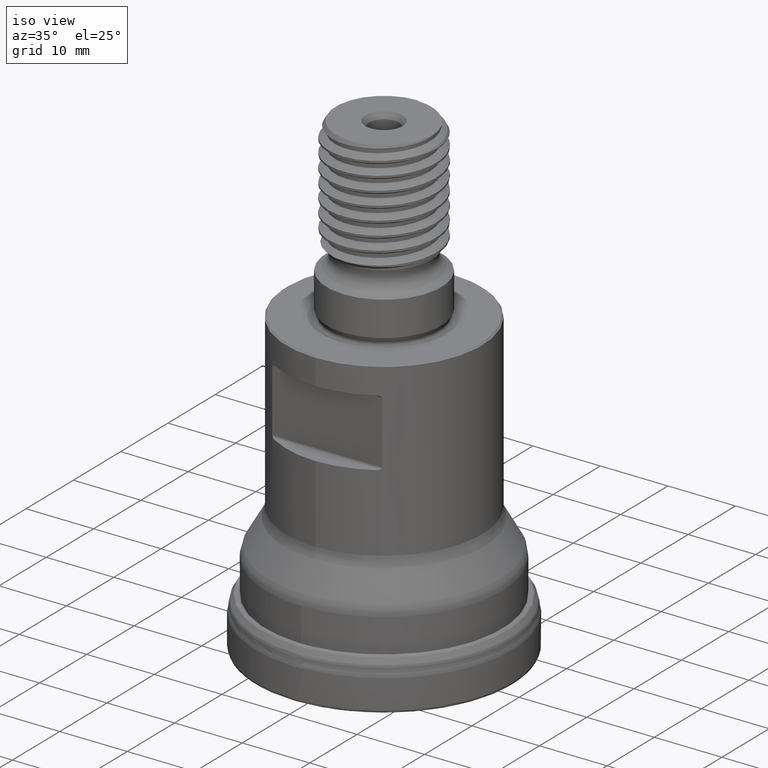
[diagram: clean part render]
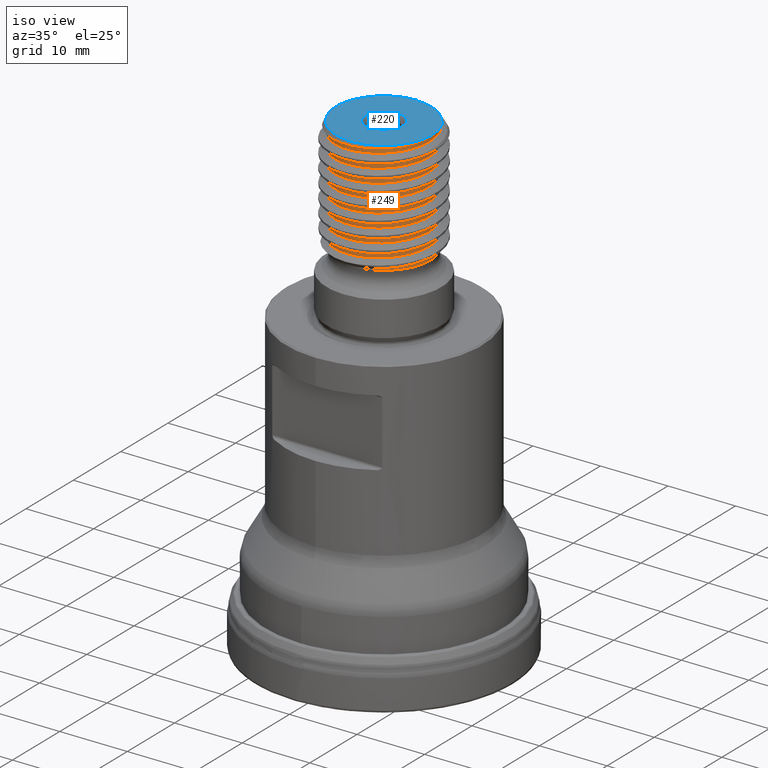
[diagram: same view with the hole feature highlighted: cylindrical wall and planar end face, labeled with their STEP entity ids]
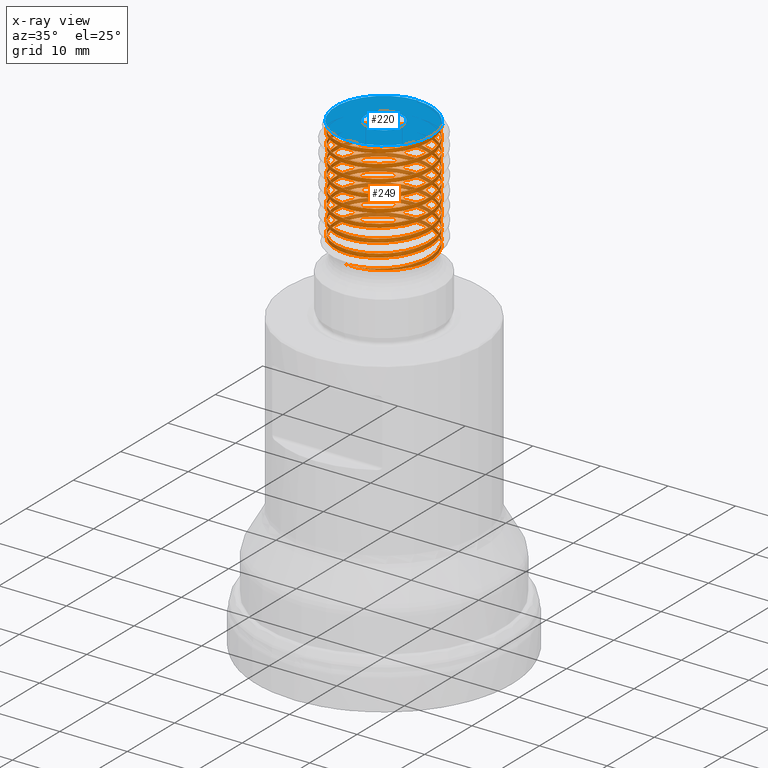
[diagram: x-ray of the same camera — body ghosted, the hole faces saturated]
A machine part, iso view. The highlighted faces form one hole feature of diameter 14 mm: the cylindrical wall (entity #249, orange) and its adjacent planar end face (entity #220, blue) — they share a circular edge in the B-rep.
The next image is the same camera in x-ray (body ghosted, the hole faces saturated) — the bore reads through the body.
Wall:
#170=FACE_OUTER_BOUND('',#500,.T.);
#249=ADVANCED_FACE('',(#170),#283,.T.);
#283=CYLINDRICAL_SURFACE('',#1099,7.);
#298=LINE('',#2201,#319);
#319=VECTOR('',#1295,1.);
#500=EDGE_LOOP('',(#672,#673,#674,#675,#676));
#672=ORIENTED_EDGE('',*,*,#843,.T.);
#673=ORIENTED_EDGE('',*,*,#881,.T.);
#674=ORIENTED_EDGE('',*,*,#854,.T.);
#675=ORIENTED_EDGE('',*,*,#882,.T.);
#676=ORIENTED_EDGE('',*,*,#879,.T.);
#763=VERTEX_POINT('',#1801);
#764=VERTEX_POINT('',#1802);
#773=VERTEX_POINT('',#2092);
#774=VERTEX_POINT('',#2093);
#789=VERTEX_POINT('',#2202);
#843=EDGE_CURVE('',#763,#764,#924,.T.);
#854=EDGE_CURVE('',#773,#774,#929,.T.);
#879=EDGE_CURVE('',#789,#763,#298,.T.);
#881=EDGE_CURVE('',#764,#773,#1001,.T.);
#882=EDGE_CURVE('',#774,#789,#1002,.T.);
#924=CIRCLE('',#1053,7.);
#929=CIRCLE('',#1061,7.);
#1001=B_SPLINE_CURVE_WITH_KNOTS('',3,(#2206,#2207,#2208,#2209,#2210,#2211,
#2212,#2213,#2214,#2215,#2216,#2217,#2218,#2219,#2220,#2221,#2222,#2223,
#2224,#2225,#2226,#2227,#2228,#2229,#2230,#2231,#2232,#2233,#2234,#2235,
#2236,#2237,#2238,#2239,#2240,#2241,#2242,#2243,#2244,#2245,#2246,#2247,
#2248,#2249,#2250,#2251,#2252,#2253,#2254,#2255,#2256,#2257,#2258,#2259,
#2260,#2261,#2262,#2263,#2264,#2265,#2266,#2267,#2268,#2269,#2270,#2271,
#2272,#2273,#2274,#2275,#2276,#2277,#2278,#2279,#2280,#2281,#2282,#2283,
#2284,#2285,#2286,#2287,#2288,#2289,#2290,#2291,#2292,#2293,#2294,#2295,
#2296,#2297,#2298,#2299,#2300,#2301,#2302,#2303,#2304,#2305,#2306,#2307,
#2308,#2309,#2310,#2311,#2312,#2313,#2314,#2315,#2316,#2317,#2318,#2319,
#2320,#2321,#2322,#2323,#2324,#2325,#2326,#2327,#2328,#2329,#2330,#2331,
#2332,#2333,#2334,#2335),.UNSPECIFIED.,.F.,.F.,(4,2,2,2,2,2,2,2,2,2,2,2,
2,2,2,2,2,2,2,2,2,2,2,2,2,2,2,2,2,2,2,2,2,2,2,2,2,2,2,2,2,2,2,2,2,2,2,2,
2,2,2,2,2,2,2,2,2,2,2,2,2,2,2,2,4),(0.,0.015625,0.03125,0.046875,0.0625,
0.078125,0.09375,0.109375,0.125,0.140625,0.15625,0.171875,0.1875,0.203125,
0.21875,0.234375,0.25,0.265625,0.28125,0.296875,0.3125,0.328125,0.34375,
0.359375,0.375,0.390625,0.40625,0.421875,0.4375,0.453125,0.46875,0.484375,
0.5,0.515625,0.53125,0.546875,0.5625,0.578125,0.59375,0.609375,0.625,0.640625,
0.65625,0.671875,0.6875,0.703125,0.71875,0.734375,0.75,0.765625,0.78125,
0.796875,0.8125,0.828125,0.84375,0.859375,0.875,0.890625,0.90625,0.921875,
0.9375,0.953125,0.96875,0.984375,1.),.UNSPECIFIED.);
#1002=B_SPLINE_CURVE_WITH_KNOTS('',3,(#2336,#2337,#2338,#2339,#2340,#2341,
#2342,#2343,#2344,#2345,#2346,#2347,#2348,#2349,#2350,#2351,#2352,#2353,
#2354,#2355,#2356,#2357,#2358,#2359,#2360,#2361,#2362,#2363,#2364,#2365,
#2366,#2367,#2368,#2369,#2370,#2371,#2372,#2373,#2374,#2375,#2376,#2377,
#2378,#2379,#2380,#2381,#2382,#2383,#2384,#2385,#2386,#2387,#2388,#2389,
#2390,#2391,#2392,#2393,#2394,#2395,#2396,#2397,#2398,#2399,#2400,#2401,
#2402,#2403,#2404,#2405,#2406,#2407,#2408,#2409,#2410,#2411,#2412,#2413,
#2414,#2415,#2416,#2417,#2418,#2419,#2420,#2421,#2422,#2423,#2424,#2425,
#2426,#2427,#2428,#2429,#2430,#2431,#2432,#2433,#2434,#2435,#2436,#2437,
#2438,#2439,#2440,#2441,#2442,#2443,#2444,#2445,#2446,#2447,#2448,#2449,
#2450,#2451,#2452,#2453,#2454,#2455,#2456,#2457,#2458,#2459,#2460,#2461,
#2462,#2463,#2464,#2465),.UNSPECIFIED.,.F.,.F.,(4,2,2,2,2,2,2,2,2,2,2,2,
2,2,2,2,2,2,2,2,2,2,2,2,2,2,2,2,2,2,2,2,2,2,2,2,2,2,2,2,2,2,2,2,2,2,2,2,
2,2,2,2,2,2,2,2,2,2,2,2,2,2,2,2,4),(0.,0.015625,0.03125,0.046875,0.0625,
0.078125,0.09375,0.109375,0.125,0.140625,0.15625,0.171875,0.1875,0.203125,
0.21875,0.234375,0.25,0.265625,0.28125,0.296875,0.3125,0.328125,0.34375,
0.359375,0.375,0.390625,0.40625,0.421875,0.4375,0.453125,0.46875,0.484375,
0.5,0.515625,0.53125,0.546875,0.5625,0.578125,0.59375,0.609375,0.625,0.640625,
0.65625,0.671875,0.6875,0.703125,0.71875,0.734375,0.75,0.765625,0.78125,
0.796875,0.8125,0.828125,0.84375,0.859375,0.875,0.890625,0.90625,0.921875,
0.9375,0.953125,0.96875,0.984375,1.),.UNSPECIFIED.);
#1053=AXIS2_PLACEMENT_3D('',#1800,#1195,#1196);
#1061=AXIS2_PLACEMENT_3D('',#2091,#1212,#1213);
#1099=AXIS2_PLACEMENT_3D('',#2466,#1298,#1299);
#1195=DIRECTION('',(-1.17145536458252E-15,-1.17145536458252E-15,-1.));
#1196=DIRECTION('',(1.,-1.76085023486833E-30,-1.98254111540207E-15));
#1212=DIRECTION('',(1.17145536458252E-15,1.17145536458252E-15,1.));
#1213=DIRECTION('',(1.,-1.76085023486833E-30,-9.91270557701033E-16));
#1295=DIRECTION('',(1.17145536458252E-15,1.17145536458252E-15,1.));
#1298=DIRECTION('',(-1.17145536458252E-15,-1.17145536458252E-15,-1.));
#1299=DIRECTION('',(1.,-1.76085023486833E-30,-1.98254111540207E-15));
#1800=CARTESIAN_POINT('',(8.25290304348388E-14,8.25290304348388E-14,70.45));
#1801=CARTESIAN_POINT('',(8.25290304348387E-14,7.00000000000008,70.45));
#1802=CARTESIAN_POINT('',(5.35401283944786,4.50938427227366,70.45));
#2091=CARTESIAN_POINT('',(6.28892803353137E-14,6.28892803353137E-14,53.6847431295223));
#2092=CARTESIAN_POINT('',(-0.934828873592552,-6.93729738277787,53.6847431295249));
#2093=CARTESIAN_POINT('',(6.99522109408452,0.258615244871098,53.6847431295228));
#2201=CARTESIAN_POINT('',(8.25290304348387E-14,7.00000000000008,70.45));
#2202=CARTESIAN_POINT('',(8.22045752882812E-14,7.00000000000008,70.173032429261));
#2206=CARTESIAN_POINT('',(5.35401283944786,4.50938427227366,70.45));
#2207=CARTESIAN_POINT('',(6.59182985406166,3.03971839574197,70.3637399565031));
#2208=CARTESIAN_POINT('',(7.18310776025138,1.04060566650342,70.2742170686101));
#2209=CARTESIAN_POINT('',(6.71007346318391,-2.76673297721647,70.1017771202478));
#2210=CARTESIAN_POINT('',(5.64741838099544,-4.55773102854534,70.0127684963518));
#2211=CARTESIAN_POINT('',(2.54132800149736,-6.79763918484753,69.8398856306728));
#2212=CARTESIAN_POINT('',(0.50733566448231,-7.24267297883892,69.7518740259479));
#2213=CARTESIAN_POINT('',(-3.27101434844653,-6.48183357446915,69.5766291890875));
#2214=CARTESIAN_POINT('',(-4.97144275114471,-5.28568611067704,69.489864770749));
#2215=CARTESIAN_POINT('',(-6.96787450795535,-2.02544946367457,69.3148538591715));
#2216=CARTESIAN_POINT('',(-7.26320076300864,0.0255693779078201,69.2293671630908));
#2217=CARTESIAN_POINT('',(-6.21615749688584,3.75687703961237,69.0511733908775));
#2218=CARTESIAN_POINT('',(-4.89665834508435,5.35511387048648,68.9661228771191));
#2219=CARTESIAN_POINT('',(-1.49502756448623,7.10066194771925,68.7901207254955));
#2220=CARTESIAN_POINT('',(0.580296364754777,7.23681638324706,68.704553903868));
#2221=CARTESIAN_POINT('',(4.20017774417421,5.92171952671896,68.527748524665));
#2222=CARTESIAN_POINT('',(5.70687112222425,4.48334215800183,68.4412128938815));
#2223=CARTESIAN_POINT('',(7.19445480774719,0.953181478353687,68.266675034365));
#2224=CARTESIAN_POINT('',(7.16944205701404,-1.12937584197261,68.1787711843122));
#2225=CARTESIAN_POINT('',(5.59318189643599,-4.62522491071439,68.0056230096417));
#2226=CARTESIAN_POINT('',(4.04888381629346,-6.02520234677506,67.9165708843148));
#2227=CARTESIAN_POINT('',(0.403230491227549,-7.24802929411646,67.743758980196));
#2228=CARTESIAN_POINT('',(-1.66954994431885,-7.06191307996421,67.6544212464238));
#2229=CARTESIAN_POINT('',(-5.02853502023424,-5.23181124619594,67.4825773239058));
#2230=CARTESIAN_POINT('',(-6.30893056296727,-3.59660762278265,67.3937077783631));
#2231=CARTESIAN_POINT('',(-7.26052910259677,0.151355181433089,67.2194326734303));
#2232=CARTESIAN_POINT('',(-6.91545744091675,2.19753302384504,67.1313756649198));
#2233=CARTESIAN_POINT('',(-4.83922372147424,5.40690454710847,66.9580635423184));
#2234=CARTESIAN_POINT('',(-3.11233588824858,6.56058017586516,66.871014212604));
#2235=CARTESIAN_POINT('',(0.690998011584477,7.22844164901551,66.6946211510305));
#2236=CARTESIAN_POINT('',(2.71013655482188,6.73169031169701,66.6085256686138));
#2237=CARTESIAN_POINT('',(5.7573933078161,4.41734274168211,66.4327520095467));
#2238=CARTESIAN_POINT('',(6.77641593002273,2.60178592739117,66.3471605019251));
#2239=CARTESIAN_POINT('',(7.15531493554144,-1.22088944702363,66.1702481544423));
#2240=CARTESIAN_POINT('',(6.51259507649208,-3.20435629795625,66.0846683909485));
#2241=CARTESIAN_POINT('',(3.96835112553032,-6.07733356490346,65.9081235447665));
#2242=CARTESIAN_POINT('',(2.07883676271745,-6.95291201598073,65.8220935812967));
#2243=CARTESIAN_POINT('',(-1.74870032339423,-7.04319494029202,65.6469068228754));
#2244=CARTESIAN_POINT('',(-3.67745404805557,-6.26046957530081,65.5597184674029));
#2245=CARTESIAN_POINT('',(-6.3642930484092,-3.494699067559,65.3850178433534));
#2246=CARTESIAN_POINT('',(-7.08947843333174,-1.54688544324759,65.2966065488588));
#2247=CARTESIAN_POINT('',(-6.89178994831313,2.27085674130664,65.1245855478021));
#2248=CARTESIAN_POINT('',(-5.97462191661079,4.12972994134755,65.035712404908));
#2249=CARTESIAN_POINT('',(-3.00232141457673,6.61338359378036,64.8618368171321));
#2250=CARTESIAN_POINT('',(-1.00933444004367,7.1858717496009,64.7728628155461));
#2251=CARTESIAN_POINT('',(2.78370628763769,6.7012303435815,64.6009455205623));
#2252=CARTESIAN_POINT('',(4.57220412615423,5.63917599451545,64.512134995631));
#2253=CARTESIAN_POINT('',(6.81271632572394,2.50843631243757,64.3382319579841));
#2254=CARTESIAN_POINT('',(7.24222513211489,0.469745786580303,64.2502607822695));
#2255=CARTESIAN_POINT('',(6.47205018406627,-3.28375583488992,64.0759062400375));
#2256=CARTESIAN_POINT('',(5.27308907618258,-4.98685191999907,63.9890501830469));
#2257=CARTESIAN_POINT('',(1.99686759690002,-6.97758412903811,63.8134596960411));
#2258=CARTESIAN_POINT('',(-0.0682978357518206,-7.25908869280531,63.7274503670304));
#2259=CARTESIAN_POINT('',(-3.76766532668336,-6.20513748683217,63.5505326137417));
#2260=CARTESIAN_POINT('',(-5.37136866375982,-4.87905051621345,63.4650536350419));
#2261=CARTESIAN_POINT('',(-7.1059384716918,-1.47050117249674,63.289011886698));
#2262=CARTESIAN_POINT('',(-7.23743018352602,0.601302060956955,63.2036085647032));
#2263=CARTESIAN_POINT('',(-5.9017063872833,4.23223599864479,63.0261008739749));
#2264=CARTESIAN_POINT('',(-4.45995962150061,5.72377192431284,62.939851551649));
#2265=CARTESIAN_POINT('',(-0.932416327949172,7.19606869466532,62.7658562120123));
#2266=CARTESIAN_POINT('',(1.14478626554068,7.17034336722686,62.6780967084088));
#2267=CARTESIAN_POINT('',(4.65742128514693,5.57070790567638,62.5039383389861));
#2268=CARTESIAN_POINT('',(6.04242615680563,4.01884882279185,62.4150279522644));
#2269=CARTESIAN_POINT('',(7.24659439671948,0.385913682496214,62.243058908117));
#2270=CARTESIAN_POINT('',(7.0596435803283,-1.68771722382773,62.1536696082779));
#2271=CARTESIAN_POINT('',(5.21048631932278,-5.05349277480682,61.9811204253997));
#2272=CARTESIAN_POINT('',(3.5589454308463,-6.32600486147624,61.8919165836853));
#2273=CARTESIAN_POINT('',(-0.165550446339989,-7.25651590895236,61.718813137205));
#2274=CARTESIAN_POINT('',(-2.21869820785419,-6.90945999869791,61.6304797010656));
#2275=CARTESIAN_POINT('',(-5.42562278325881,-4.81932325383188,61.4568026437681));
#2276=CARTESIAN_POINT('',(-6.5735160454449,-3.08373021007898,61.3696888716249));
#2277=CARTESIAN_POINT('',(-7.22524767544023,0.718541047415756,61.1933423746949));
#2278=CARTESIAN_POINT('',(-6.72126457160762,2.73450397180255,61.1073768856627));
#2279=CARTESIAN_POINT('',(-4.39901568467862,5.77075128725056,60.9317214852214));
#2280=CARTESIAN_POINT('',(-2.59024724670549,6.78503757456654,60.8465997756958));
#2281=CARTESIAN_POINT('',(1.26330289006518,7.15193550693089,60.6683123631861));
#2282=CARTESIAN_POINT('',(3.23207584338739,6.49689125257246,60.5832078870409));
#2283=CARTESIAN_POINT('',(6.08608367657033,3.95164468126186,60.4073398598758));
#2284=CARTESIAN_POINT('',(6.96015424422518,2.06358459392561,60.3213208162441));
#2285=CARTESIAN_POINT('',(7.03705038746075,-1.78383023968956,60.1453745726303));
#2286=CARTESIAN_POINT('',(6.23848032117962,-3.70860555300654,60.0579446165746));
#2287=CARTESIAN_POINT('',(3.47957727501252,-6.36906067271714,59.8844527990376));
#2288=CARTESIAN_POINT('',(1.52746176008199,-7.0950252067429,59.7957128925939));
#2289=CARTESIAN_POINT('',(-2.29947156248231,-6.88367290377489,59.6233149124962));
#2290=CARTESIAN_POINT('',(-4.16158177004599,-5.9484105311303,59.5338922105645));
#2291=CARTESIAN_POINT('',(-6.61732711724459,-2.9855204737232,59.3611450627046));
#2292=CARTESIAN_POINT('',(-7.18926667021446,-0.985241098635494,59.2718344954661));
#2293=CARTESIAN_POINT('',(-6.69176052578364,2.80652745282521,59.0998466826444));
#2294=CARTESIAN_POINT('',(-5.62941565319139,4.5886839272928,59.0114020438572));
#2295=CARTESIAN_POINT('',(-2.47238180466244,6.82888490113623,58.8364228372758));
#2296=CARTESIAN_POINT('',(-0.440459225379978,7.24286109417288,58.7490216318845));
#2297=CARTESIAN_POINT('',(3.30145670140637,6.46168900578207,58.5749612372699));
#2298=CARTESIAN_POINT('',(5.00016328177295,5.26487300968692,58.4884593224677));
#2299=CARTESIAN_POINT('',(6.99116784602862,1.96063581553934,58.3116703937408));
#2300=CARTESIAN_POINT('',(7.25619424700712,-0.103313944764817,58.2258854416368));
#2301=CARTESIAN_POINT('',(6.19420524040628,-3.78085309965949,58.049790797359));
#2302=CARTESIAN_POINT('',(4.86662335418829,-5.38517775976989,57.9642458414476));
#2303=CARTESIAN_POINT('',(1.43924608589091,-7.11426265189149,57.7875657444893));
#2304=CARTESIAN_POINT('',(-0.642585154253901,-7.23005471776389,57.701663645855));
#2305=CARTESIAN_POINT('',(-4.24143917071779,-5.89039902412629,57.5255765976557));
#2306=CARTESIAN_POINT('',(-5.7379593659084,-4.44271629334196,57.4387947901174));
#2307=CARTESIAN_POINT('',(-7.20009932440514,-0.905801008303158,57.2647522258906));
#2308=CARTESIAN_POINT('',(-7.16561528627938,1.17399169033114,57.1767516265969));
#2309=CARTESIAN_POINT('',(-5.55170131765896,4.6800546363725,57.0027117094738));
#2310=CARTESIAN_POINT('',(-3.99607865108831,6.05676130156114,56.9138408999559));
#2311=CARTESIAN_POINT('',(-0.363580336603838,7.2471243530526,56.7421123082595));
#2312=CARTESIAN_POINT('',(1.70228631516821,7.06006937321765,56.6531234480122));
#2313=CARTESIAN_POINT('',(5.08606496162923,5.1840429646698,56.4792470474953));
#2314=CARTESIAN_POINT('',(6.34012391600177,3.52985129435543,56.3905312160375));
#2315=CARTESIAN_POINT('',(7.25418299091368,-0.183985230001435,56.2179899365698));
#2316=CARTESIAN_POINT('',(6.90662075853497,-2.23559056375216,56.1298297942634));
#2317=CARTESIAN_POINT('',(4.79470346751631,-5.4506966646063,55.9551763189991));
#2318=CARTESIAN_POINT('',(3.04742765990638,-6.58690615163973,55.8680056649412));
#2319=CARTESIAN_POINT('',(-0.733458628146194,-7.22053920657378,55.6926500217888));
#2320=CARTESIAN_POINT('',(-2.75391193625728,-6.71463575032088,55.6065139888161));
#2321=CARTESIAN_POINT('',(-5.78940828608567,-4.37642729965323,55.4303789395079));
#2322=CARTESIAN_POINT('',(-6.79635662235476,-2.55236082403487,55.344817082462));
#2323=CARTESIAN_POINT('',(-7.14583538334275,1.2814233447462,55.1675042893522));
#2324=CARTESIAN_POINT('',(-6.48580660908807,3.25415152738313,55.0820816207014));
#2325=CARTESIAN_POINT('',(-3.93118230461309,6.09926185874636,54.906290814266));
#2326=CARTESIAN_POINT('',(-2.04825281416951,6.96814755574039,54.8205327853358));
#2327=CARTESIAN_POINT('',(1.82445246900012,7.03006352301912,54.6436050246447));
#2328=CARTESIAN_POINT('',(3.73343725036054,6.22213168083683,54.5565648549099));
#2329=CARTESIAN_POINT('',(6.37756099305054,3.46124141544232,54.3836559117896));
#2330=CARTESIAN_POINT('',(7.10129864052017,1.51290773113213,54.2950420461714));
#2331=CARTESIAN_POINT('',(6.87445573996873,-2.33649105797206,54.1216626600896));
#2332=CARTESIAN_POINT('',(5.92583968564051,-4.18918001341478,54.0323242787243));
#2333=CARTESIAN_POINT('',(2.96923611403537,-6.62181561686923,53.8604509437015));
#2334=CARTESIAN_POINT('',(0.966882538176202,-7.19356068516641,53.7710710836281));
#2335=CARTESIAN_POINT('',(-0.934828873592552,-6.93729738277787,53.6847431295249));
#2336=CARTESIAN_POINT('',(6.99522109408425,0.258615244871088,53.6847431295229));
#2337=CARTESIAN_POINT('',(6.92572242930802,2.13846778835044,53.7695730139948));
#2338=CARTESIAN_POINT('',(6.06472044324267,3.98089988709795,53.8567405733409));
#2339=CARTESIAN_POINT('',(3.21128253153281,6.50507974343545,54.0279959313825));
#2340=CARTESIAN_POINT('',(1.27792928435417,7.1346224343733,54.1155122785163));
#2341=CARTESIAN_POINT('',(-2.46924920741307,6.81459821915879,54.2843451068829));
#2342=CARTESIAN_POINT('',(-4.27414430919489,5.8569064260152,54.3724557580976));
#2343=CARTESIAN_POINT('',(-6.6410592045318,2.90998197603077,54.5421859610927));
#2344=CARTESIAN_POINT('',(-7.18893277846953,0.941698582057799,54.6300851518052));
#2345=CARTESIAN_POINT('',(-6.68686845150141,-2.80238131329733,54.8000212006104));
#2346=CARTESIAN_POINT('',(-5.63732303515101,-4.55606364861955,54.8876066249393));
#2347=CARTESIAN_POINT('',(-2.594870758108,-6.7678484558708,55.05731835861));
#2348=CARTESIAN_POINT('',(-0.615965414644235,-7.22881397661019,55.143717001805));
#2349=CARTESIAN_POINT('',(3.1350205176248,-6.54269143812733,55.3164743049107));
#2350=CARTESIAN_POINT('',(4.82263773790638,-5.41102664973121,55.4021404650581));
#2351=CARTESIAN_POINT('',(6.88510091819225,-2.26548659265267,55.5733887550785));
#2352=CARTESIAN_POINT('',(7.24588152494474,-0.253721137332952,55.6589083641066));
#2353=CARTESIAN_POINT('',(6.39010405470428,3.42545524844762,55.8316299452848));
#2354=CARTESIAN_POINT('',(5.1808934076301,5.07245853987793,55.9164315322807));
#2355=CARTESIAN_POINT('',(1.92413074250489,6.99065183124957,56.0898701448494));
#2356=CARTESIAN_POINT('',(-0.103048989918367,7.24740860507399,56.1742393622579));
#2357=CARTESIAN_POINT('',(-3.72067873856505,6.22029744526844,56.347192606031));
#2358=CARTESIAN_POINT('',(-5.30614581086593,4.94698089230252,56.4307778175215));
#2359=CARTESIAN_POINT('',(-7.08114796320006,1.57643485061809,56.6061437551133));
#2360=CARTESIAN_POINT('',(-7.2342529445692,-0.451689748096656,56.6897103646169));
#2361=CARTESIAN_POINT('',(-6.03339513018986,-4.01703653176626,56.8628050201377));
#2362=CARTESIAN_POINT('',(-4.67305761549565,-5.54307506004343,56.9471530635474));
#2363=CARTESIAN_POINT('',(-1.25264842077856,-7.14100976983918,57.1204674039748));
#2364=CARTESIAN_POINT('',(0.789319990891595,-7.20784304106902,57.2052465346004));
#2365=CARTESIAN_POINT('',(4.31144007341891,-5.82988094612801,57.3781354753607));
#2366=CARTESIAN_POINT('',(5.76433420277373,-4.39398679567564,57.4637850269804));
#2367=CARTESIAN_POINT('',(7.19013752784086,-0.914653536905725,57.6346280947087));
#2368=CARTESIAN_POINT('',(7.16707131468788,1.11997504539768,57.7208338615026));
#2369=CARTESIAN_POINT('',(5.6136052866242,4.59441955181724,57.892781368583));
#2370=CARTESIAN_POINT('',(4.11238445574228,5.96898941337018,57.9797754621502));
#2371=CARTESIAN_POINT('',(0.565402621516545,7.2264002383163,58.1491587504475));
#2372=CARTESIAN_POINT('',(-1.47510067609843,7.09815628294545,58.2370861336184));
#2373=CARTESIAN_POINT('',(-4.84250962083672,5.39535403785953,58.4066125888615));
#2374=CARTESIAN_POINT('',(-6.15639508953011,3.83142499997223,58.4945744688142));
#2375=CARTESIAN_POINT('',(-7.2483034645543,0.207641312200036,58.6645670184394));
#2376=CARTESIAN_POINT('',(-7.01555404514274,-1.82098578029578,58.7524488724735));
#2377=CARTESIAN_POINT('',(-5.15939731306674,-5.09063916795107,58.9215350932944));
#2378=CARTESIAN_POINT('',(-3.54343615648599,-6.32919989146007,59.0088007805188));
#2379=CARTESIAN_POINT('',(0.145333127595472,-7.25214377568275,59.1802506783397));
#2380=CARTESIAN_POINT('',(2.15521860325042,-6.92080301454596,59.2670325152635));
#2381=CARTESIAN_POINT('',(5.33538864979264,-4.90674123524054,59.4374057973465));
#2382=CARTESIAN_POINT('',(6.49423120583829,-3.22196405520096,59.5239220353625));
#2383=CARTESIAN_POINT('',(7.23389353933397,0.47631459086791,59.6954030025059));
#2384=CARTESIAN_POINT('',(6.81606333070193,2.47528618791959,59.7809770290904));
#2385=CARTESIAN_POINT('',(4.63861566969253,5.5739578137198,59.9540059132551));
#2386=CARTESIAN_POINT('',(2.89949440379947,6.64274408151451,60.0388636398681));
#2387=CARTESIAN_POINT('',(-0.818042227627674,7.2016611725336,60.2112643597703));
#2388=CARTESIAN_POINT('',(-2.79127870830973,6.69454081991805,60.2953806629006));
#2389=CARTESIAN_POINT('',(-5.79244604748853,4.36528148049424,60.4700745925601));
#2390=CARTESIAN_POINT('',(-6.77448705256109,2.5789183335959,60.5538837486503));
#2391=CARTESIAN_POINT('',(-7.1541600892899,-1.16725661852301,60.7272836726705));
#2392=CARTESIAN_POINT('',(-6.54394200740868,-3.11921482001926,60.8113408095021));
#2393=CARTESIAN_POINT('',(-4.09293879884337,-5.9833544169369,60.9849355683202));
#2394=CARTESIAN_POINT('',(-2.2635723490421,-6.88964119383982,61.0689202089258));
#2395=CARTESIAN_POINT('',(1.52103546424565,-7.09065347310881,61.2431458473968));
#2396=CARTESIAN_POINT('',(3.43464070989456,-6.38247808816745,61.3275365625352));
#2397=CARTESIAN_POINT('',(6.169708371886,-3.80361432822563,61.4997432123616));
#2398=CARTESIAN_POINT('',(6.9892487559341,-1.93717118690278,61.5847776541892));
#2399=CARTESIAN_POINT('',(7.01053119835336,1.85867767421021,61.7577139700561));
#2400=CARTESIAN_POINT('',(6.21229560031628,3.73559018239309,61.8437696199053));
#2401=CARTESIAN_POINT('',(3.49907179335584,6.34852323154308,62.0142535064185));
#2402=CARTESIAN_POINT('',(1.58675950049378,7.07334501082458,62.1015232599465));
#2403=CARTESIAN_POINT('',(-2.17817353850831,6.91415760528396,62.2713094801234));
#2404=CARTESIAN_POINT('',(-4.02016531640549,6.03614367009999,62.358910186281));
#2405=CARTESIAN_POINT('',(-6.5174212282879,3.18119161799148,62.5293378908298));
#2406=CARTESIAN_POINT('',(-7.14117659034498,1.23957830355197,62.6172072761537));
#2407=CARTESIAN_POINT('',(-6.80158207997751,-2.50428406424993,62.7859572033102));
#2408=CARTESIAN_POINT('',(-5.83863104453992,-4.30198341382698,62.8738542436822));
#2409=CARTESIAN_POINT('',(-2.86846883464012,-6.660972925317,63.0442239583133));
#2410=CARTESIAN_POINT('',(-0.898549718229202,-7.19323861920379,63.1319337860531));
#2411=CARTESIAN_POINT('',(2.83360867775331,-6.67238602677456,63.3015505330186));
#2412=CARTESIAN_POINT('',(4.58427657570213,-5.61530449916354,63.3890887097398));
#2413=CARTESIAN_POINT('',(6.78305879780419,-2.55682414068501,63.5591817146404));
#2414=CARTESIAN_POINT('',(7.23055695512131,-0.566958459666894,63.645792519571));
#2415=CARTESIAN_POINT('',(6.52660702795294,3.16319403118378,63.8179572202269));
#2416=CARTESIAN_POINT('',(5.38462687166767,4.85166486525415,63.9037808890622));
#2417=CARTESIAN_POINT('',(2.23013986814385,6.89632762275273,64.0751058899024));
#2418=CARTESIAN_POINT('',(0.220356854483245,7.2486087383932,64.1602894339128));
#2419=CARTESIAN_POINT('',(-3.4662974375129,6.3699032850051,64.3337363216289));
#2420=CARTESIAN_POINT('',(-5.10273462339303,5.14925959122799,64.4183330530858));
#2421=CARTESIAN_POINT('',(-6.99840272645934,1.890802542021,64.5914238052658));
#2422=CARTESIAN_POINT('',(-7.24742174702355,-0.139082594921124,64.6758033949624));
#2423=CARTESIAN_POINT('',(-6.19988341664699,-3.75578374875673,64.8490327602706));
#2424=CARTESIAN_POINT('',(-4.91246787727283,-5.33627841792498,64.9328274212523));
#2425=CARTESIAN_POINT('',(-1.54112737027812,-7.08753373377717,65.1077215322762));
#2426=CARTESIAN_POINT('',(0.491145934370181,-7.23131110557602,65.1915025319848));
#2427=CARTESIAN_POINT('',(4.04742232007674,-6.01260818592238,65.3644060843687));
#2428=CARTESIAN_POINT('',(5.56586707280722,-4.64830466639367,65.4486898632769));
#2429=CARTESIAN_POINT('',(7.15018763993833,-1.20848221230216,65.6224170767146));
#2430=CARTESIAN_POINT('',(7.20153222958929,0.833081470048301,65.7073175407483));
#2431=CARTESIAN_POINT('',(5.80849682257827,4.33790915668478,65.8795134304921));
#2432=CARTESIAN_POINT('',(4.36540170374158,5.78668144758743,65.9654905523231));
#2433=CARTESIAN_POINT('',(0.874771168992054,7.19563684553233,66.1362784516095));
#2434=CARTESIAN_POINT('',(-1.1619161414818,7.15994099832846,66.2227826076646));
#2435=CARTESIAN_POINT('',(-4.6244571807896,5.58830922573398,66.394397412606));
#2436=CARTESIAN_POINT('',(-5.99116691937853,4.07920536015681,66.4815626885365));
#2437=CARTESIAN_POINT('',(-7.22870901858759,0.528926602448137,66.6506937945113));
#2438=CARTESIAN_POINT('',(-7.09263139790507,-1.50848284927828,66.7385517622541));
#2439=CARTESIAN_POINT('',(-5.36652301609949,-4.87661474496292,66.908548804752));
#2440=CARTESIAN_POINT('',(-3.79268279906093,-6.17862125023425,66.996513344577));
#2441=CARTESIAN_POINT('',(-0.173812863032342,-7.24773015893831,67.1660299564216));
#2442=CARTESIAN_POINT('',(1.85645492504473,-7.00671726978653,67.2539921434489));
#2443=CARTESIAN_POINT('',(5.1192814982431,-5.13161463178932,67.4233130104956));
#2444=CARTESIAN_POINT('',(6.3486646171622,-3.50939309073608,67.510435024709));
#2445=CARTESIAN_POINT('',(7.2516249849742,0.187929145722743,67.6821774163642));
#2446=CARTESIAN_POINT('',(6.90821526139689,2.1934642407177,67.7687178924895));
#2447=CARTESIAN_POINT('',(4.87961636817362,5.35948389050256,67.9390674453381));
#2448=CARTESIAN_POINT('',(3.19207538505475,6.5105040244576,68.0253020751714));
#2449=CARTESIAN_POINT('',(-0.520490929085115,7.23222628995324,68.1974573100541));
#2450=CARTESIAN_POINT('',(-2.5170892007971,6.79908319364209,68.2829034956742));
#2451=CARTESIAN_POINT('',(-5.59420211822202,4.61174294375945,68.4555524457321));
#2452=CARTESIAN_POINT('',(-6.65772521947818,2.86585780129496,68.5404302798813));
#2453=CARTESIAN_POINT('',(-7.19745447541456,-0.857376877255965,68.7130816345665));
#2454=CARTESIAN_POINT('',(-6.68194405631376,-2.82481195429922,68.7969125571054));
#2455=CARTESIAN_POINT('',(-4.32939456349722,-5.82102067187698,68.9721667048959));
#2456=CARTESIAN_POINT('',(-2.5407041672779,-6.78825263284627,69.0556868342575));
#2457=CARTESIAN_POINT('',(1.20269408560974,-7.14766244372295,69.2288890463302));
#2458=CARTESIAN_POINT('',(3.15060815230914,-6.53031659362341,69.3128651623397));
#2459=CARTESIAN_POINT('',(6.0090174592077,-4.05747159167972,69.4868770149818));
#2460=CARTESIAN_POINT('',(6.90216455328305,-2.21975275828235,69.5710158769487));
#2461=CARTESIAN_POINT('',(7.08196649468201,1.55336035635687,69.7445539357636));
#2462=CARTESIAN_POINT('',(6.36507080746419,3.46739421709136,69.8292628195073));
#2463=CARTESIAN_POINT('',(3.77031447041076,6.19045053570116,70.0013918448302));
#2464=CARTESIAN_POINT('',(1.90662871282178,7.00000000000008,70.0863326051792));
#2465=CARTESIAN_POINT('',(8.22045752882812E-14,7.00000000000008,70.173032429261));
#2466=CARTESIAN_POINT('',(8.25290304348388E-14,8.25290304348388E-14,70.45));
End face:
#197=PLANE('',#1055);
#220=ADVANCED_FACE('',(#356,#357),#197,.F.);
#288=LINE('',#1803,#309);
#309=VECTOR('',#1197,1.);
#356=FACE_BOUND('',#458,.T.);
#357=FACE_BOUND('',#459,.T.);
#458=EDGE_LOOP('',(#589));
#459=EDGE_LOOP('',(#590,#591,#592,#593));
#589=ORIENTED_EDGE('',*,*,#842,.T.);
#590=ORIENTED_EDGE('',*,*,#843,.F.);
#591=ORIENTED_EDGE('',*,*,#844,.T.);
#592=ORIENTED_EDGE('',*,*,#845,.T.);
#593=ORIENTED_EDGE('',*,*,#846,.T.);
#762=VERTEX_POINT('',#1799);
#763=VERTEX_POINT('',#1801);
#764=VERTEX_POINT('',#1802);
#765=VERTEX_POINT('',#1804);
#766=VERTEX_POINT('',#1806);
#842=EDGE_CURVE('',#762,#762,#923,.T.);
#843=EDGE_CURVE('',#763,#764,#924,.T.);
#844=EDGE_CURVE('',#763,#765,#288,.T.);
#845=EDGE_CURVE('',#765,#766,#925,.T.);
#846=EDGE_CURVE('',#766,#764,#991,.T.);
#923=CIRCLE('',#1052,2.75);
#924=CIRCLE('',#1053,7.);
#925=CIRCLE('',#1054,7.13397459621556);
#991=B_SPLINE_CURVE_WITH_KNOTS('',3,(#1807,#1808,#1809,#1810),
 .UNSPECIFIED.,.F.,.F.,(4,4),(0.,1.),.UNSPECIFIED.);
#1052=AXIS2_PLACEMENT_3D('',#1798,#1193,#1194);
#1053=AXIS2_PLACEMENT_3D('',#1800,#1195,#1196);
#1054=AXIS2_PLACEMENT_3D('',#1805,#1198,#1199);
#1055=AXIS2_PLACEMENT_3D('',#1811,#1200,#1201);
#1193=DIRECTION('',(-1.17145536458252E-15,-1.17145536458252E-15,-1.));
#1194=DIRECTION('',(0.,-1.,0.));
#1195=DIRECTION('',(-1.17145536458252E-15,-1.17145536458252E-15,-1.));
#1196=DIRECTION('',(1.,-1.76085023486833E-30,-1.98254111540207E-15));
#1197=DIRECTION('',(5.35152640779466E-30,1.,-1.17145536458252E-15));
#1198=DIRECTION('',(1.17145536458252E-15,1.17145536458252E-15,1.));
#1199=DIRECTION('',(0.,-1.,1.94530939529507E-15));
#1200=DIRECTION('',(-1.17145536458252E-15,-1.17145536458252E-15,-1.));
#1201=DIRECTION('',(0.,-1.,1.16573417585641E-15));
#1798=CARTESIAN_POINT('',(8.25290304348388E-14,8.25290304348388E-14,70.45));
#1799=CARTESIAN_POINT('',(8.25290304348388E-14,-2.74999999999992,70.45));
#1800=CARTESIAN_POINT('',(8.25290304348388E-14,8.25290304348388E-14,70.45));
#1801=CARTESIAN_POINT('',(8.25290304348387E-14,7.00000000000008,70.45));
#1802=CARTESIAN_POINT('',(5.35401283944786,4.50938427227366,70.45));
#1803=CARTESIAN_POINT('',(8.32667268468867E-14,8.25290304348389E-14,70.45));
#1804=CARTESIAN_POINT('',(8.25290304348387E-14,7.13397459621564,70.45));
#1805=CARTESIAN_POINT('',(8.25290304348388E-14,8.25290304348388E-14,70.45));
#1806=CARTESIAN_POINT('',(6.40140349429203,3.14890883366229,70.45));
#1807=CARTESIAN_POINT('',(6.401403494292,3.14890883366227,70.45));
#1808=CARTESIAN_POINT('',(6.10913267027931,3.64191383485213,70.45));
#1809=CARTESIAN_POINT('',(5.75765303477686,4.09938697941004,70.45));
#1810=CARTESIAN_POINT('',(5.35401283944786,4.50938427227366,70.45));
#1811=CARTESIAN_POINT('',(8.00000000000008,8.25290304348388E-14,70.45));